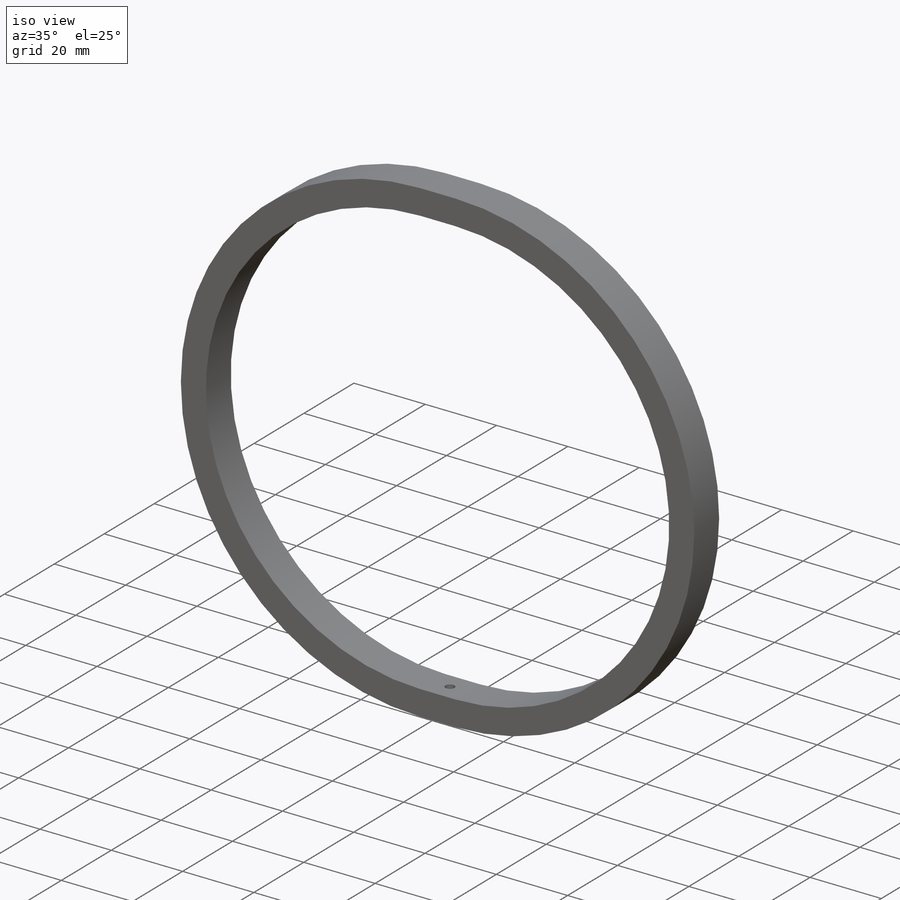
[diagram: iso view]
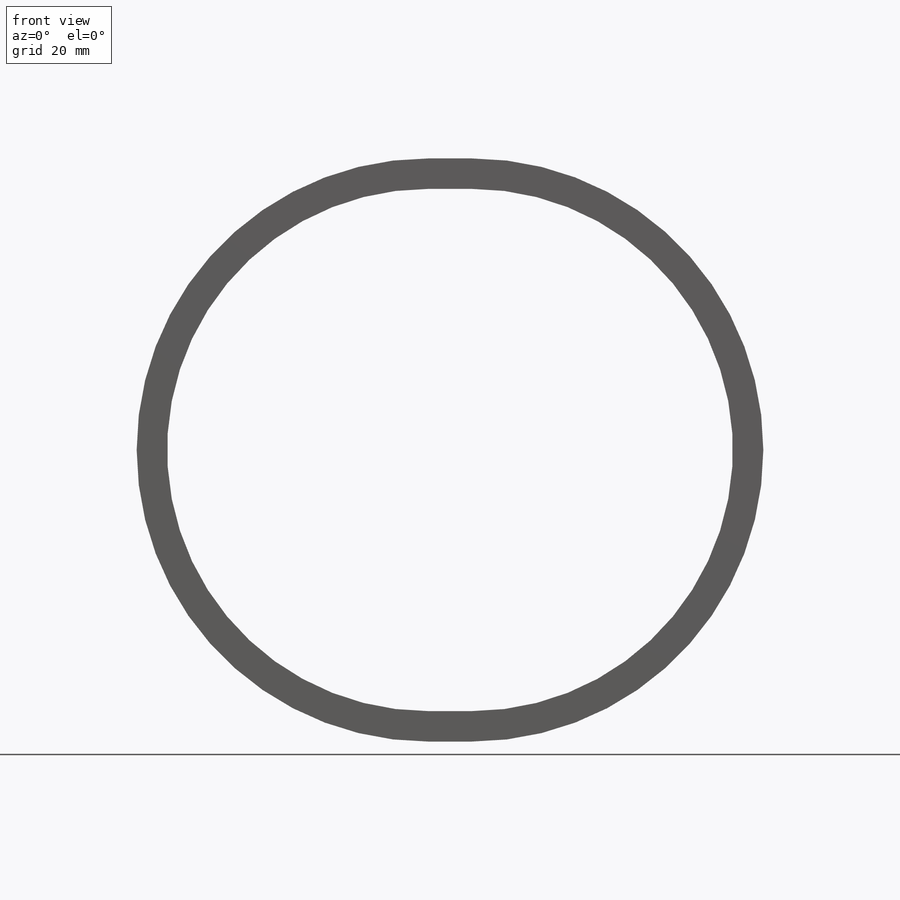
[diagram: front view]
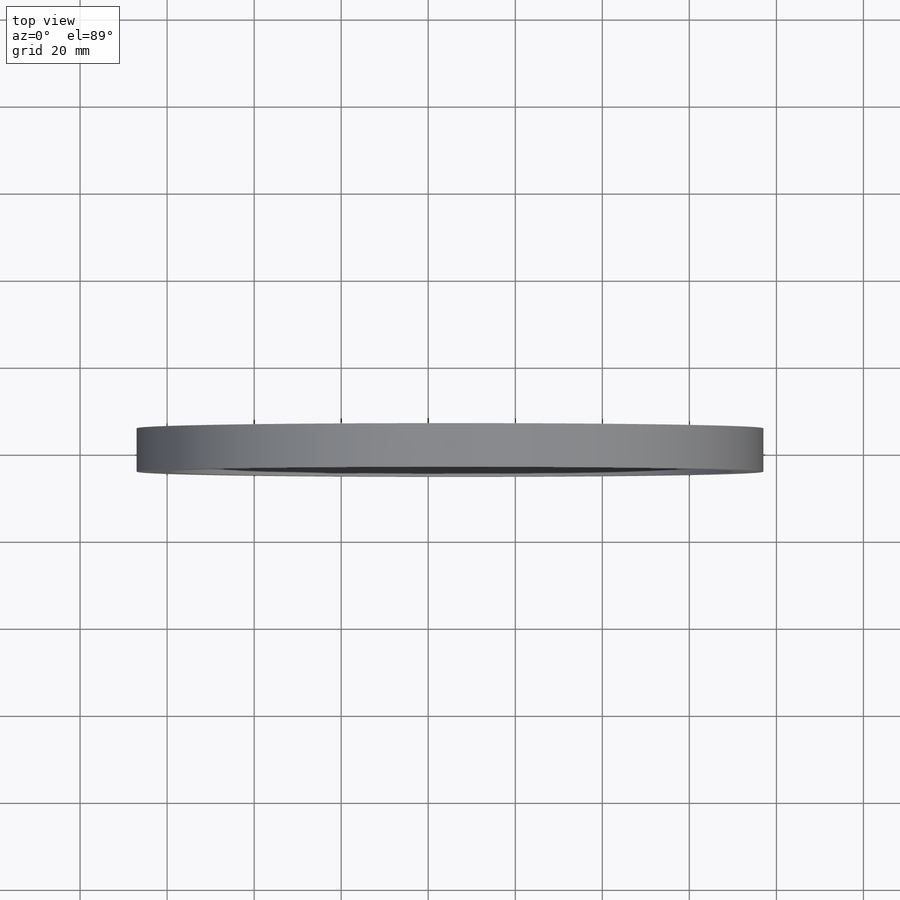
[diagram: top view]
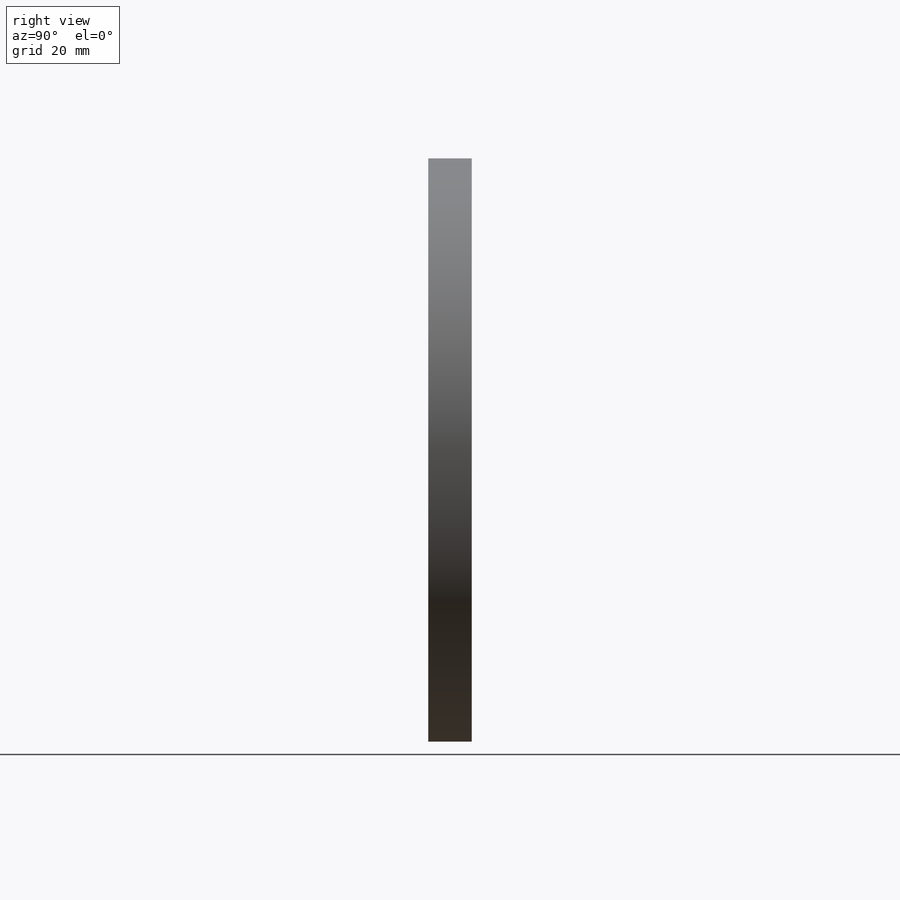
[diagram: right view]
SOLIDWORKS PART (.sldprt)
format: sldprt  version: not decoded by parser v0  size: 221,184 bytes
history: native  units: mm
features: sketch x4, revolve x2, material x1, extrude x1, cut_extrude x1, mirror x1 (+13 scaffold rows collapsed)
feature tree (23):
  scaffold x13  (default folders/planes/origin — collapsed)
  material  "Material <not specified>"
  sketch  "Sketch1"  dims[D1=7.0mm D2=10.0mm D3=5.0mm D4=60.0mm]
  revolve  "Revolve1"  Angle=180deg
  sketch  "Sketch2"
  extrude  "Boss-Extrude1"  Depth=10mm
  sketch  "Sketch4"  dims[D1=0.0mm]
  revolve  "Revolve3"  Angle=180deg
  sketch  "Sketch5"  dims[D2=2.5mm D1=5.0mm]
  cut_extrude  "Cut-Extrude1"  Depth=2.5mm
  mirror  "Mirror1"
decode coverage: 7 of 9 modeling features carry decoded parameters
note: suppression state not decoded; provenance and decode notes live in map.json
